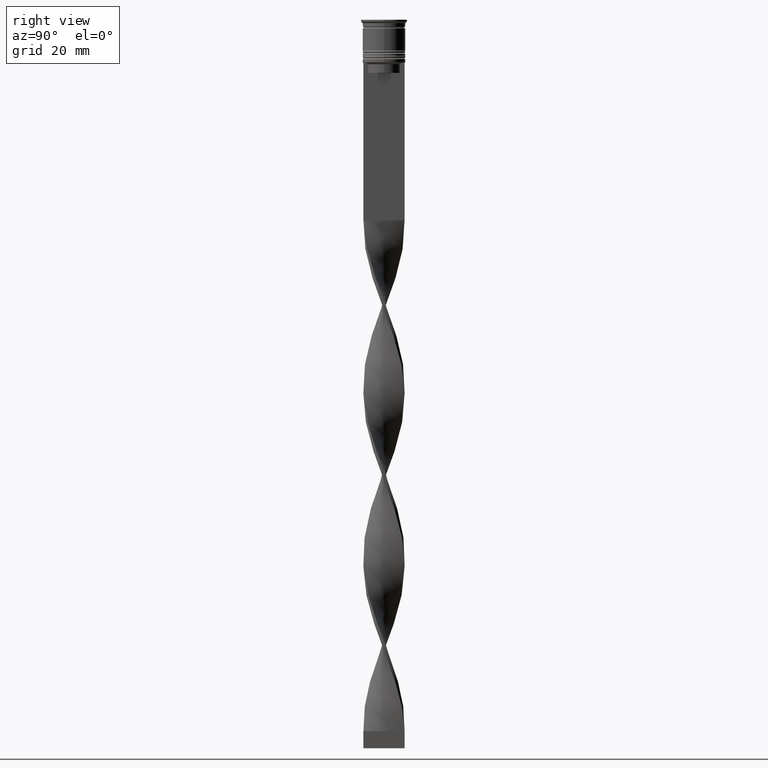
[diagram: clean part render]
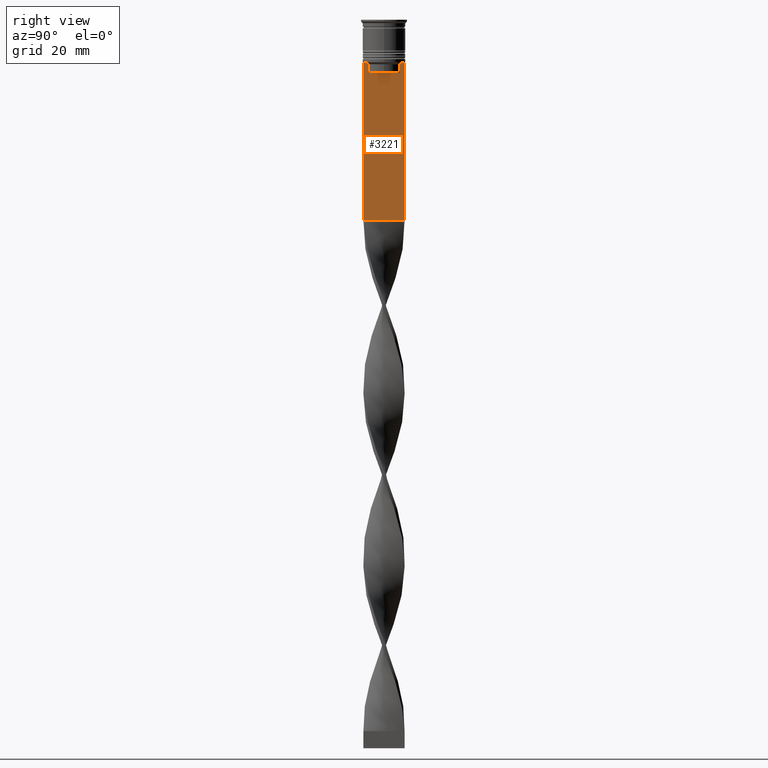
[diagram: same view with one face highlighted and labeled with its STEP entity id]
A machine part, right view. The second image highlights one B-rep face of the part: STEP entity #3221.
In plain terms, the highlighted planar face has unit normal (-1, 0, 0).
Its self-contained STEP definition (entity closure, byte-faithful):
#23 = CARTESIAN_POINT ( 'NONE',  ( 0.5000000000000002220, 4.650000000000001243, -15.50000000000000000 ) ) ;
#39 = CARTESIAN_POINT ( 'NONE',  ( 0.5000000000000002220, 6.000000000000000888, -58.50000000000000000 ) ) ;
#101 = PLANE ( 'NONE',  #106 ) ;
#103 = VECTOR ( 'NONE', #1866, 1000.000000000000000 ) ;
#106 = AXIS2_PLACEMENT_3D ( 'NONE', #1560, #1282, #968 ) ;
#139 = DIRECTION ( 'NONE',  ( 0.000000000000000000, 0.000000000000000000, -1.000000000000000000 ) ) ;
#150 = CARTESIAN_POINT ( 'NONE',  ( 0.5000000000000002220, -5.125670687822231564, -12.50000000000000000 ) ) ;
#207 = B_SPLINE_CURVE_WITH_KNOTS ( 'NONE', 3,
 ( #2713, #1073, #1940, #150 ),
 .UNSPECIFIED., .F., .F.,
 ( 4, 4 ),
 ( 0.02203698174624554168, 0.02275222543365897770 ),
 .UNSPECIFIED. ) ;
#367 = EDGE_CURVE ( 'NONE', #2014, #1812, #1060, .T. ) ;
#416 = VECTOR ( 'NONE', #2388, 1000.000000000000000 ) ;
#435 = CARTESIAN_POINT ( 'NONE',  ( 0.5000000000000002220, 4.623040125285526436, -13.00000000000000178 ) ) ;
#470 = VECTOR ( 'NONE', #139, 1000.000000000000000 ) ;
#717 = VECTOR ( 'NONE', #3460, 1000.000000000000000 ) ;
#743 = CARTESIAN_POINT ( 'NONE',  ( 0.5000000000000002220, 6.000000000000000888, -0.4584054212077061097 ) ) ;
#763 = EDGE_CURVE ( 'NONE', #2225, #1960, #1140, .T. ) ;
#783 = VERTEX_POINT ( 'NONE', #3224 ) ;
#823 = LINE ( 'NONE', #23, #416 ) ;
#839 = CARTESIAN_POINT ( 'NONE',  ( 0.5000000000000002220, -4.623040125285526436, 0.000000000000000000 ) ) ;
#892 = ORIENTED_EDGE ( 'NONE', *, *, #2623, .T. ) ;
#951 = VERTEX_POINT ( 'NONE', #2870 ) ;
#968 = DIRECTION ( 'NONE',  ( 0.000000000000000000, 0.000000000000000000, 1.000000000000000000 ) ) ;
#1012 = ORIENTED_EDGE ( 'NONE', *, *, #1539, .T. ) ;
#1060 = LINE ( 'NONE', #743, #470 ) ;
#1073 = CARTESIAN_POINT ( 'NONE',  ( 0.5000000000000002220, -4.790630799407577634, -12.83338098686238915 ) ) ;
#1091 = ORIENTED_EDGE ( 'NONE', *, *, #1805, .T. ) ;
#1134 = DIRECTION ( 'NONE',  ( 0.000000000000000000, 0.000000000000000000, -1.000000000000000000 ) ) ;
#1140 = LINE ( 'NONE', #2047, #2463 ) ;
#1169 = CARTESIAN_POINT ( 'NONE',  ( 0.5000000000000002220, -6.000000000000000000, -58.50000000000000000 ) ) ;
#1174 = ORIENTED_EDGE ( 'NONE', *, *, #1577, .T. ) ;
#1210 = LINE ( 'NONE', #3769, #2890 ) ;
#1246 = CARTESIAN_POINT ( 'NONE',  ( 0.5000000000000002220, -6.000000000000000000, -12.50000000000000000 ) ) ;
#1282 = DIRECTION ( 'NONE',  ( -1.000000000000000000, 0.000000000000000000, 0.000000000000000000 ) ) ;
#1523 = CARTESIAN_POINT ( 'NONE',  ( 0.5000000000000002220, -4.623040125285526436, -15.50000000000000000 ) ) ;
#1528 = CARTESIAN_POINT ( 'NONE',  ( 0.5000000000000002220, 6.000000000000000888, -12.50000000000000000 ) ) ;
#1530 = DIRECTION ( 'NONE',  ( 0.000000000000000000, -1.000000000000000000, 0.000000000000000000 ) ) ;
#1539 = EDGE_CURVE ( 'NONE', #2172, #2225, #2616, .T. ) ;
#1547 = CARTESIAN_POINT ( 'NONE',  ( 0.5000000000000002220, -5.125670687822231564, -12.50000000000000000 ) ) ;
#1548 = ORIENTED_EDGE ( 'NONE', *, *, #2064, .T. ) ;
#1560 = CARTESIAN_POINT ( 'NONE',  ( 0.5000000000000002220, -6.000000000000000000, -0.4584054212077061097 ) ) ;
#1568 = CARTESIAN_POINT ( 'NONE',  ( 0.5000000000000002220, -6.000000000000000000, -12.50000000000000000 ) ) ;
#1577 = EDGE_CURVE ( 'NONE', #1960, #2665, #823, .T. ) ;
#1805 = EDGE_CURVE ( 'NONE', #2014, #2172, #3570, .T. ) ;
#1812 = VERTEX_POINT ( 'NONE', #39 ) ;
#1866 = DIRECTION ( 'NONE',  ( 0.000000000000000000, -1.000000000000000000, 0.000000000000000000 ) ) ;
#1893 = CARTESIAN_POINT ( 'NONE',  ( 0.5000000000000002220, 4.958169823806760412, -12.66670956677067927 ) ) ;
#1940 = CARTESIAN_POINT ( 'NONE',  ( 0.5000000000000002220, -4.958169719475986170, -12.66670967060858111 ) ) ;
#1960 = VERTEX_POINT ( 'NONE', #3316 ) ;
#2014 = VERTEX_POINT ( 'NONE', #1528 ) ;
#2047 = CARTESIAN_POINT ( 'NONE',  ( 0.5000000000000002220, 4.623040125285526436, 0.000000000000000000 ) ) ;
#2064 = EDGE_CURVE ( 'NONE', #951, #2499, #207, .T. ) ;
#2172 = VERTEX_POINT ( 'NONE', #2223 ) ;
#2187 = EDGE_LOOP ( 'NONE', ( #1091, #1012, #3755, #1174, #2879, #1548, #892, #3634, #3571, #3304 ) ) ;
#2223 = CARTESIAN_POINT ( 'NONE',  ( 0.5000000000000002220, 5.125670687822231564, -12.50000000000000000 ) ) ;
#2225 = VERTEX_POINT ( 'NONE', #435 ) ;
#2311 = EDGE_CURVE ( 'NONE', #3154, #783, #1210, .T. ) ;
#2373 = EDGE_CURVE ( 'NONE', #2665, #951, #3542, .T. ) ;
#2388 = DIRECTION ( 'NONE',  ( 0.000000000000000000, -1.000000000000000000, 0.000000000000000000 ) ) ;
#2446 = CARTESIAN_POINT ( 'NONE',  ( 0.5000000000000002220, 5.125670687822231564, -12.50000000000000000 ) ) ;
#2463 = VECTOR ( 'NONE', #3515, 1000.000000000000000 ) ;
#2499 = VERTEX_POINT ( 'NONE', #1547 ) ;
#2616 = B_SPLINE_CURVE_WITH_KNOTS ( 'NONE', 3,
 ( #2446, #1893, #2795, #3031 ),
 .UNSPECIFIED., .F., .F.,
 ( 4, 4 ),
 ( 0.008759809102772709091, 0.009468778395565353653 ),
 .UNSPECIFIED. ) ;
#2623 = EDGE_CURVE ( 'NONE', #2499, #3154, #2783, .T. ) ;
#2665 = VERTEX_POINT ( 'NONE', #1523 ) ;
#2713 = CARTESIAN_POINT ( 'NONE',  ( 0.5000000000000002220, -4.623040125285526436, -13.00000000000000178 ) ) ;
#2783 = LINE ( 'NONE', #3036, #103 ) ;
#2795 = CARTESIAN_POINT ( 'NONE',  ( 0.5000000000000002220, 4.790630915080664742, -12.83338087185995491 ) ) ;
#2870 = CARTESIAN_POINT ( 'NONE',  ( 0.5000000000000002220, -4.623040125285526436, -13.00000000000000178 ) ) ;
#2879 = ORIENTED_EDGE ( 'NONE', *, *, #2373, .T. ) ;
#2890 = VECTOR ( 'NONE', #1134, 1000.000000000000000 ) ;
#2923 = EDGE_CURVE ( 'NONE', #783, #1812, #3233, .T. ) ;
#3013 = VECTOR ( 'NONE', #3201, 1000.000000000000000 ) ;
#3031 = CARTESIAN_POINT ( 'NONE',  ( 0.5000000000000002220, 4.623040125285526436, -13.00000000000000178 ) ) ;
#3036 = CARTESIAN_POINT ( 'NONE',  ( 0.5000000000000002220, -6.000000000000000000, -12.50000000000000000 ) ) ;
#3154 = VERTEX_POINT ( 'NONE', #1246 ) ;
#3201 = DIRECTION ( 'NONE',  ( -0.000000000000000000, -0.000000000000000000, 1.000000000000000000 ) ) ;
#3221 = ADVANCED_FACE ( 'NONE', ( #3557 ), #101, .F. ) ;
#3224 = CARTESIAN_POINT ( 'NONE',  ( 0.5000000000000002220, -5.999999999999999112, -58.50000000000000000 ) ) ;
#3233 = LINE ( 'NONE', #1169, #717 ) ;
#3304 = ORIENTED_EDGE ( 'NONE', *, *, #367, .F. ) ;
#3316 = CARTESIAN_POINT ( 'NONE',  ( 0.5000000000000002220, 4.623040125285526436, -15.50000000000000000 ) ) ;
#3460 = DIRECTION ( 'NONE',  ( 0.000000000000000000, 1.000000000000000000, 0.000000000000000000 ) ) ;
#3515 = DIRECTION ( 'NONE',  ( 0.000000000000000000, 0.000000000000000000, -1.000000000000000000 ) ) ;
#3542 = LINE ( 'NONE', #839, #3013 ) ;
#3557 = FACE_OUTER_BOUND ( 'NONE', #2187, .T. ) ;
#3563 = VECTOR ( 'NONE', #1530, 1000.000000000000000 ) ;
#3570 = LINE ( 'NONE', #1568, #3563 ) ;
#3571 = ORIENTED_EDGE ( 'NONE', *, *, #2923, .T. ) ;
#3634 = ORIENTED_EDGE ( 'NONE', *, *, #2311, .T. ) ;
#3755 = ORIENTED_EDGE ( 'NONE', *, *, #763, .T. ) ;
#3769 = CARTESIAN_POINT ( 'NONE',  ( 0.5000000000000002220, -6.000000000000000000, -0.4584054212077061097 ) ) ;